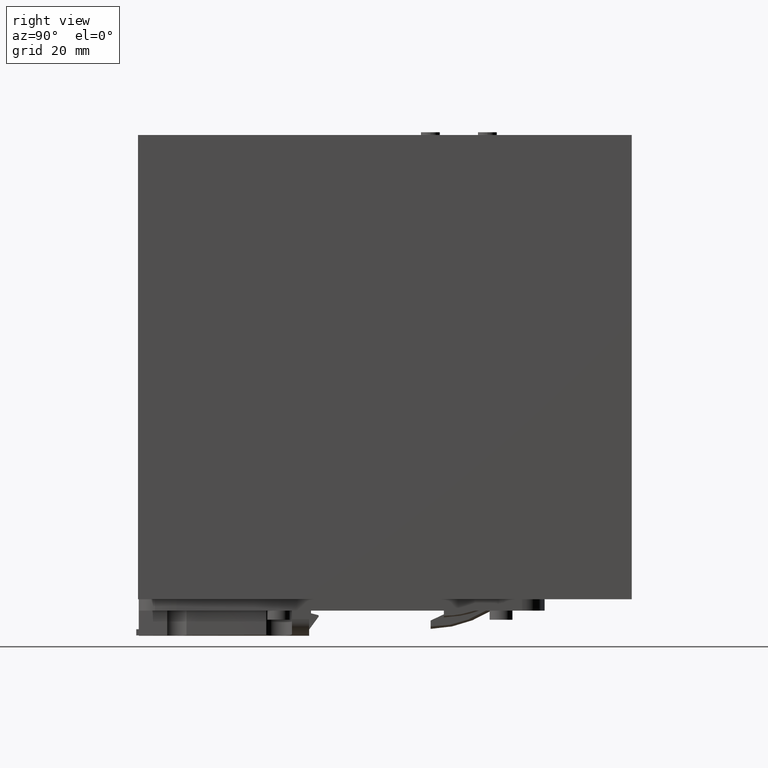
[diagram: clean part render]
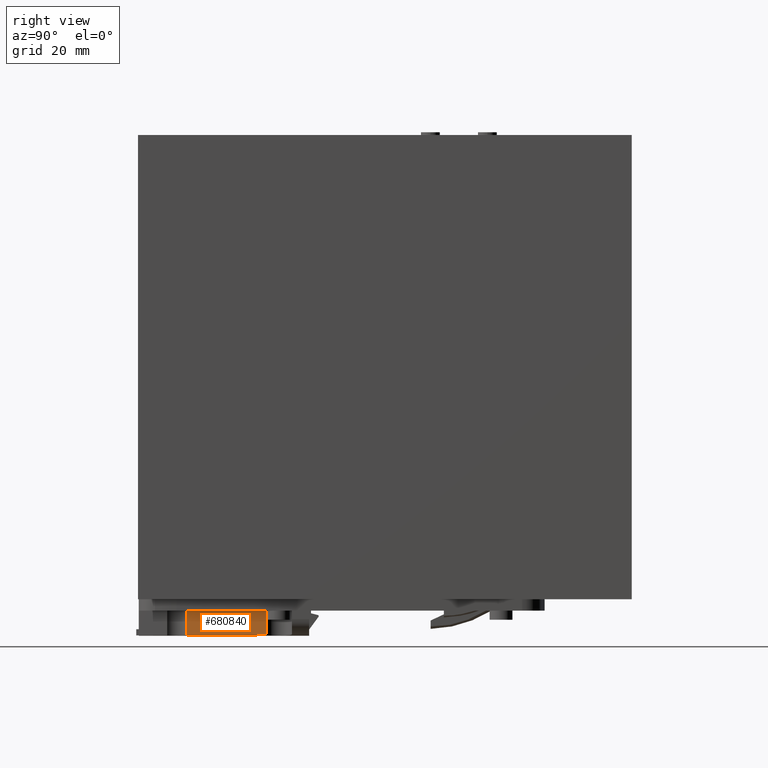
[diagram: same view with one face highlighted and labeled with its STEP entity id]
A machine part, right view. The second image highlights one B-rep face of the part: STEP entity #680840.
In plain terms, the highlighted cylindrical surface (partial cylindrical patch) has radius 401.5 mm, axis along (0, 0, -1).
Its self-contained STEP definition (entity closure, byte-faithful):
#657990=CARTESIAN_POINT('',(35.2342996994727,-2.89999999999985,
95.4154929503813));
#658000=VERTEX_POINT('',#657990);
#658050=CARTESIAN_POINT('',(-366.2,-2.89999999999985,88.1523651948));
#658060=DIRECTION('',(0.,-1.,0.));
#658070=DIRECTION('',(0.,0.,-1.));
#658080=AXIS2_PLACEMENT_3D('',#658050,#658060,#658070);
#658090=CIRCLE('',#658080,401.5);
#658100=CARTESIAN_POINT('',(34.303127226962,-2.89999999999985,
116.427709249717));
#658110=VERTEX_POINT('',#658100);
#658120=EDGE_CURVE('',#658000,#658110,#658090,.T.);
#663360=CARTESIAN_POINT('',(31.5,20.5000000000001,84.1523651948));
#663370=DIRECTION('',(0.,0.,1.));
#663380=DIRECTION('',(1.,0.,0.));
#663390=AXIS2_PLACEMENT_3D('',#663360,#663370,#663380);
#663400=CYLINDRICAL_SURFACE('',#663390,30.);
#663960=CARTESIAN_POINT('',(34.3031272269618,-9.36875420484525,
116.427709249715));
#663970=VERTEX_POINT('',#663960);
#664000=CARTESIAN_POINT('',(-366.2,-2.89999999999991,88.1523651948));
#664010=DIRECTION('',(0.,-1.,0.));
#664020=DIRECTION('',(0.,0.,-1.));
#664030=AXIS2_PLACEMENT_3D('',#664000,#664010,#664020);
#664040=CYLINDRICAL_SURFACE('',#664030,401.5);
#664050=CARTESIAN_POINT('',(35.2342996994723,-9.26667609516908,
95.4154929503812));
#664060=CARTESIAN_POINT('',(35.2025896935878,-9.27065419017258,
97.1681103397601));
#664070=CARTESIAN_POINT('',(35.1594019143175,-9.27602742559005,
98.9205176986573));
#664080=CARTESIAN_POINT('',(35.1047407057076,-9.28264334216385,
100.67255237877));
#664090=CARTESIAN_POINT('',(35.0500789194253,-9.28925932865621,
102.424605574799));
#664100=CARTESIAN_POINT('',(34.9839409571325,-9.29711826358049,
104.176357472617));
#664110=CARTESIAN_POINT('',(34.9063346099496,-9.30598739389539,
105.927582092806));
#664120=CARTESIAN_POINT('',(34.8287278364915,-9.31485657292654,
107.6788163321));
#664130=CARTESIAN_POINT('',(34.7396549103288,-9.32473561714479,
109.42948169713));
#664140=CARTESIAN_POINT('',(34.6391228877913,-9.33531309531287,
111.179470148444));
#664150=CARTESIAN_POINT('',(34.5385888273244,-9.34589078790172,
112.929494074553));
#664160=CARTESIAN_POINT('',(34.4265866434072,-9.35716776741701,
114.678981373023));
#664170=CARTESIAN_POINT('',(34.3031272269618,-9.36875420484555,
116.427709249719));
#664180=B_SPLINE_CURVE_WITH_KNOTS('',3,(#664050,#664060,#664070,#664080,
#664090,#664100,#664110,#664120,#664130,#664140,#664150,#664160,#664170)
,.UNSPECIFIED.,.F.,.F.,(4,3,3,3,4),(0.,5.25871798685745,10.5175815892494
,15.7763825718708,21.035509994106),.UNSPECIFIED.);
#664190=SURFACE_CURVE('',#664180,(#663400,#664040),.CURVE_3D.);
#664200=CARTESIAN_POINT('',(35.2342996994727,-9.26667609516571,
95.4154929503813));
#664210=VERTEX_POINT('',#664200);
#664220=EDGE_CURVE('',#664210,#663970,#664190,.T.);
#665260=CARTESIAN_POINT('',(35.2342996994728,-2.89999999999985,
95.4154929503813));
#665270=DIRECTION('',(0.,-1.,0.));
#665280=VECTOR('',#665270,1.);
#665290=LINE('',#665260,#665280);
#665300=EDGE_CURVE('',#658000,#664210,#665290,.T.);
#680680=CARTESIAN_POINT('',(-366.2,-2.89999999999991,88.1523651948));
#680690=DIRECTION('',(0.,-1.,0.));
#680700=DIRECTION('',(0.,0.,-1.));
#680710=AXIS2_PLACEMENT_3D('',#680680,#680690,#680700);
#680720=CYLINDRICAL_SURFACE('',#680710,401.5);
#680730=ORIENTED_EDGE('',*,*,#664220,.F.);
#680740=CARTESIAN_POINT('',(34.3031272269619,-2.89999999999991,
116.427709249718));
#680750=DIRECTION('',(0.,-1.,0.));
#680760=VECTOR('',#680750,1.);
#680770=LINE('',#680740,#680760);
#680780=EDGE_CURVE('',#658110,#663970,#680770,.T.);
#680790=ORIENTED_EDGE('',*,*,#680780,.T.);
#680800=ORIENTED_EDGE('',*,*,#658120,.T.);
#680810=ORIENTED_EDGE('',*,*,#665300,.F.);
#680820=EDGE_LOOP('',(#680810,#680800,#680790,#680730));
#680830=FACE_OUTER_BOUND('',#680820,.T.);
#680840=ADVANCED_FACE('',(#680830),#680720,.T.);